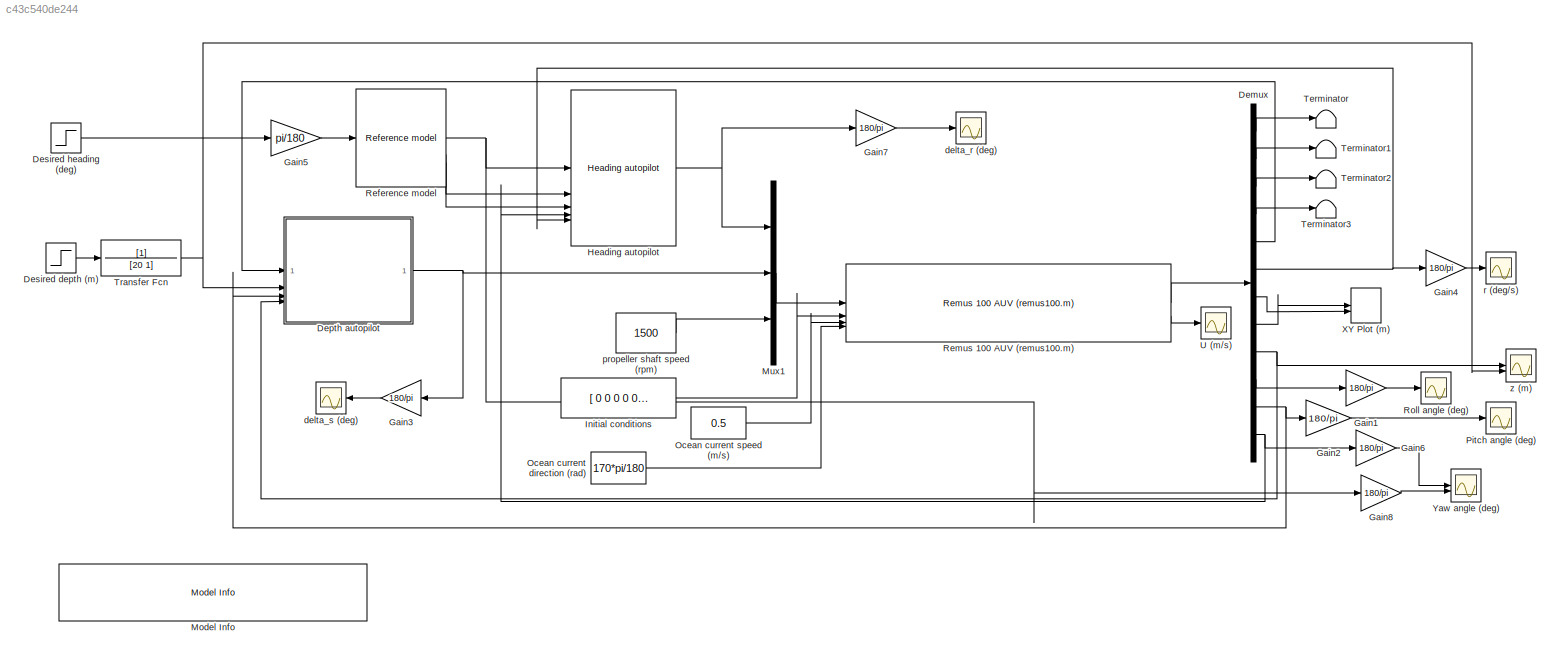
MODEL slx_c43c540de244
KIND model
CONFIG AbsTol = auto
CONFIG EnableMultiTasking = on
CONFIG FixedStep = 0.05
CONFIG MaxStep = auto
CONFIG MinStep = auto
CONFIG RelTol = 1e-3
CONFIG SampleTimeConstraint = Unconstrained
CONFIG SolverName = ode4
CONFIG StartTime = 0.0
CONFIG StopTime = 400
BLOCK [Demux] Demux
  Outputs = 12
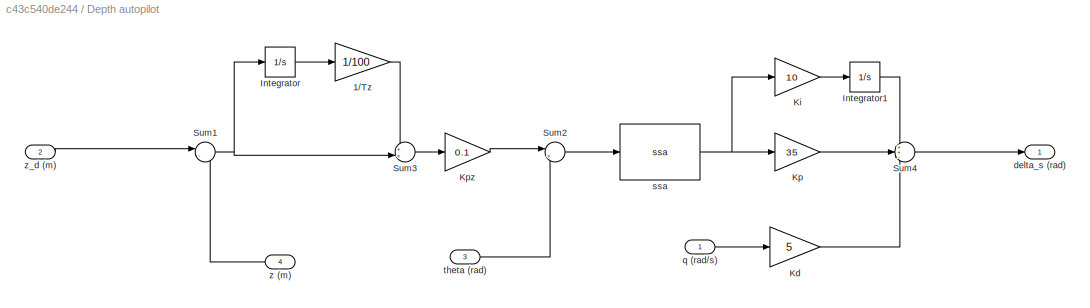
BLOCK [SubSystem] Depth autopilot
BLOCK [Gain] Depth autopilot/1//Tz
  Gain = 1/100
  NameLocation = top
  OutDataTypeStr = Inherit: Same as input
  ParamDataTypeStr = Inherit: Same as input
  SaturateOnIntegerOverflow = on
BLOCK [Integrator] Depth autopilot/Integrator
BLOCK [Integrator] Depth autopilot/Integrator1
BLOCK [Gain] Depth autopilot/Kd
  Gain = 5
  OutDataTypeStr = Inherit: Same as input
  ParamDataTypeStr = Inherit: Same as input
  SaturateOnIntegerOverflow = on
BLOCK [Gain] Depth autopilot/Ki
  Gain = 10
  NameLocation = top
  OutDataTypeStr = Inherit: Same as input
  ParamDataTypeStr = Inherit: Same as input
  SaturateOnIntegerOverflow = on
BLOCK [Gain] Depth autopilot/Kp
  Gain = 35
  NameLocation = top
  OutDataTypeStr = Inherit: Same as input
  ParamDataTypeStr = Inherit: Same as input
  SaturateOnIntegerOverflow = on
BLOCK [Gain] Depth autopilot/Kpz
  Gain = 0.1
  NameLocation = top
  OutDataTypeStr = Inherit: Same as input
  ParamDataTypeStr = Inherit: Same as input
  SaturateOnIntegerOverflow = on
BLOCK [Sum] Depth autopilot/Sum1
  InputSameDT = on
  Inputs = |-+
  OutDataTypeStr = Inherit: Same as first input
  SaturateOnIntegerOverflow = on
BLOCK [Sum] Depth autopilot/Sum2
  InputSameDT = on
  Inputs = |+-
  OutDataTypeStr = Inherit: Same as first input
  SaturateOnIntegerOverflow = on
BLOCK [Sum] Depth autopilot/Sum3
  InputSameDT = on
  Inputs = ++|
  OutDataTypeStr = Inherit: Same as first input
  SaturateOnIntegerOverflow = on
BLOCK [Sum] Depth autopilot/Sum4
  InputSameDT = on
  Inputs = ++-
  OutDataTypeStr = Inherit: Same as first input
  SaturateOnIntegerOverflow = on
BLOCK [Outport] Depth autopilot/delta_s (rad)
BLOCK [Inport] Depth autopilot/q (rad//s)
BLOCK [Reference] Depth autopilot/ssa  REF=mssSimulink/Utilities/Math Operations/ssa
  SourceBlock = mssSimulink/Utilities/Math Operations/ssa
  SourceType = SubSystem
BLOCK [Inport] Depth autopilot/theta (rad)
  Port = 3
BLOCK [Inport] Depth autopilot/z (m)
  NameLocation = top
  Port = 4
BLOCK [Inport] Depth autopilot/z_d (m)
  Port = 2
BLOCK [Step] Desired depth (m)
  After = 30
  SampleTime = 0
  Time = 200
BLOCK [Step] Desired heading (deg)
  After = 0
  SampleTime = 0
  Time = 100
BLOCK [Gain] Gain1
  Gain = 180/pi
BLOCK [Gain] Gain2
  Gain = 180/pi
BLOCK [Gain] Gain3
  Gain = 180/pi
  NameLocation = top
BLOCK [Gain] Gain4
  Gain = 180/pi
BLOCK [Gain] Gain5
  Gain = pi/180
BLOCK [Gain] Gain6
  Gain = 180/pi
BLOCK [Gain] Gain7
  Gain = 180/pi
BLOCK [Gain] Gain8
  Gain = 180/pi
BLOCK [Reference] Heading autopilot   REF=mssSimulink/Control/Autopilots/Heading autopilot
  SourceBlock = mssSimulink/Control/Autopilots/Heading autopilot
  SourceType = Course Autopilot
BLOCK [Constant] Initial conditions
  Value = [ 0 0 0 0 0 0 0 0  0 0 0 0]
BLOCK [Reference] Model Info  REF=simulink/Model-Wide
Utilities/Model Info
  SourceBlock = simulink/Model-Wide\nUtilities/Model Info
  SourceType = CMBlock
BLOCK [Mux] Mux1
  DisplayOption = bar
  Inputs = 3
BLOCK [Constant] Ocean current direction (rad)
  Value = 170*pi/180
BLOCK [Constant] Ocean current speed (m//s)
  Value = 0.5
BLOCK [Scope] Pitch angle (deg)
  Floating = off
  NumInputPorts = 1
  ScopeSpecificationString = Simulink.scopes.TimeScopeBlockCfg('CurrentConfiguration', extmgr.ConfigurationSet(extmgr.Configuration('Core','General UI',true),extmgr.Configuration('Core','Source UI',true),extmgr.Configuration('Sources','WiredSimulink',true,'DataLoggingVariableName','ScopeData1'),extmgr.Configuration('Visuals','Time Domain',true,'SerializedDisplays',{struct('MinYLimReal','-29.1596','MaxYLimReal','3.59689','YLab...<+1419ch>
BLOCK [Reference] Reference model  REF=mssSimulink/Guidance/Reference model
  SourceBlock = mssSimulink/Guidance/Reference model
  SourceType = 3rd-order reference model
BLOCK [Reference] Remus 100 AUV (remus100.m)   REF=mssSimulink/Marine craft models/Remus 100 AUV (remus100.m)
  SourceBlock = mssSimulink/Marine craft models/Remus 100 AUV (remus100.m)
BLOCK [Scope] Roll angle (deg)
  Floating = off
  NumInputPorts = 1
  ScopeSpecificationString = Simulink.scopes.TimeScopeBlockCfg('CurrentConfiguration', extmgr.ConfigurationSet(extmgr.Configuration('Core','General UI',true),extmgr.Configuration('Core','Source UI',true),extmgr.Configuration('Sources','WiredSimulink',true,'DataLoggingVariableName','ScopeData2'),extmgr.Configuration('Visuals','Time Domain',true,'SerializedDisplays',{struct('MinYLimReal','-3.33758','MaxYLimReal','30.03826','YLa...<+1467ch>
BLOCK [Terminator] Terminator
BLOCK [Terminator] Terminator1
BLOCK [Terminator] Terminator2
BLOCK [Terminator] Terminator3
BLOCK [TransferFcn] Transfer Fcn
  Denominator = [20 1]
BLOCK [Scope] U (m//s)
  Floating = off
  NumInputPorts = 1
  ScopeSpecificationString = Simulink.scopes.TimeScopeBlockCfg('CurrentConfiguration', extmgr.ConfigurationSet(extmgr.Configuration('Core','General UI',true),extmgr.Configuration('Core','Source UI',true),extmgr.Configuration('Sources','WiredSimulink',true,'DataLoggingVariableName','ScopeData3'),extmgr.Configuration('Visuals','Time Domain',true,'SerializedDisplays',{struct('MinYLimReal','-0.2937','MaxYLimReal','2.64326','YLabe...<+1459ch>
BLOCK [Record] XY Plot (m)
  CompatibilityTag = XY
  FileSettingsInternal = {"entries":[{"content":{"excelSettings":{"content":{},"type":"Streamout.ExcelSettings"}},"type":"Streamout.FileSettingStorage","uuid":""}],"packageUris":["http:\/\/schema.mathworks.com\/mf0\/streamout_blocks\/R2020a"],"version":"1.0"}
  Layout = [1 1]
  SignalsInternal = {"entries":[{"content":{"signals":[{"content":{"blockPath":[],"dimensions":[1],"domain":"","lineColor":"#a2142f","plots":[1],"port":1,"sid":[""],"signalID":53,"signalName":"Demux:8"},"type":"RecordBlkView.Signal","uuid":""},{"content":{"blockPath":[],"dimensions":[1],"domain":"","lineColor":"#139fff","plots":[1],"port":2,"sid":[""],"signalID":57,"signalName":"Demux:7"},"type":"RecordBlkView.Signal...<+158ch>
  VisualizationBindings = {"xyplotplugin":{"info":[{"series":[{"bindingParametersList":[{"parameter":"X-Axis","signalID":53,"signalName":"Demux:8"},{"parameter":"Y-Axis","signalID":57,"signalName":"Demux:7"}],"seriesID":41182}],"subplotID":1}]}}
  st = -1
BLOCK [Scope] Yaw angle (deg)
  Floating = off
  NumInputPorts = 2
  ScopeSpecificationString = Simulink.scopes.TimeScopeBlockCfg('CurrentConfiguration', extmgr.ConfigurationSet(extmgr.Configuration('Core','General UI',true),extmgr.Configuration('Core','Source UI',true),extmgr.Configuration('Sources','WiredSimulink',true,'DataLoggingVariableName','ScopeData4'),extmgr.Configuration('Visuals','Time Domain',true,'SerializedDisplays',{struct('MinYLimReal','-68.84501','MaxYLimReal','8.33734','YLa...<+1499ch>
BLOCK [Scope] delta_r (deg)
  Floating = off
  NumInputPorts = 1
  ScopeSpecificationString = Simulink.scopes.TimeScopeBlockCfg('CurrentConfiguration', extmgr.ConfigurationSet(extmgr.Configuration('Core','General UI',true),extmgr.Configuration('Core','Source UI',true),extmgr.Configuration('Sources','WiredSimulink',true,'DataLoggingVariableName','ScopeData7'),extmgr.Configuration('Visuals','Time Domain',true,'SerializedDisplays',{struct('MinYLimReal','-6.79279','MaxYLimReal','2.96102','YLab...<+1438ch>
BLOCK [Scope] delta_s (deg)
  Floating = off
  NameLocation = top
  NumInputPorts = 1
  ScopeSpecificationString = Simulink.scopes.TimeScopeBlockCfg('CurrentConfiguration', extmgr.ConfigurationSet(extmgr.Configuration('Core','General UI',true),extmgr.Configuration('Core','Source UI',true),extmgr.Configuration('Sources','WiredSimulink',true,'DataLoggingVariableName','ScopeData6'),extmgr.Configuration('Visuals','Time Domain',true,'SerializedDisplays',{struct('MinYLimReal','-24.18901','MaxYLimReal','48.2881','YLa...<+1421ch>
BLOCK [Constant] propeller shaft speed (rpm)
  Value = 1500
BLOCK [Scope] r (deg//s)
  Floating = off
  NumInputPorts = 1
  ScopeSpecificationString = Simulink.scopes.TimeScopeBlockCfg('CurrentConfiguration', extmgr.ConfigurationSet(extmgr.Configuration('Core','General UI',true),extmgr.Configuration('Core','Source UI',true),extmgr.Configuration('Sources','WiredSimulink',true,'DataLoggingVariableName','ScopeData5'),extmgr.Configuration('Visuals','Time Domain',true,'SerializedDisplays',{struct('MinYLimReal','-0.20179','MaxYLimReal','0.28422','YLab...<+1470ch>
BLOCK [Scope] z (m)
  Floating = off
  NumInputPorts = 2
  ScopeSpecificationString = Simulink.scopes.TimeScopeBlockCfg('CurrentConfiguration', extmgr.ConfigurationSet(extmgr.Configuration('Core','General UI',true),extmgr.Configuration('Core','Source UI',true),extmgr.Configuration('Sources','WiredSimulink',true,'DataLoggingVariableName','ScopeData1'),extmgr.Configuration('Visuals','Time Domain',true,'SerializedDisplays',{struct('MinYLimReal','-4.08549','MaxYLimReal','34.20941','YLa...<+1469ch>
LINE Demux:1 -> Terminator:1
LINE Demux:10 -> Gain1:1
NET Demux:11 -> Depth autopilot:3, Gain2:1
NET Demux:12 -> Gain6:1, Heading autopilot :4
LINE Demux:2 -> Terminator1:1
LINE Demux:3 -> Terminator2:1
LINE Demux:4 -> Terminator3:1
LINE Demux:5 -> Depth autopilot:1
NET Demux:6 -> Gain4:1, Heading autopilot :5
LINE Demux:7 -> XY Plot (m):2
LINE Demux:8 -> XY Plot (m):1
NET Demux:9 -> Depth autopilot:4, z (m):1
LINE Depth autopilot/1//Tz:1 -> Depth autopilot/Sum3:1
LINE Depth autopilot/Integrator1:1 -> Depth autopilot/Sum4:1
LINE Depth autopilot/Integrator:1 -> Depth autopilot/1//Tz:1
LINE Depth autopilot/Kd:1 -> Depth autopilot/Sum4:3
LINE Depth autopilot/Ki:1 -> Depth autopilot/Integrator1:1
LINE Depth autopilot/Kp:1 -> Depth autopilot/Sum4:2
LINE Depth autopilot/Kpz:1 -> Depth autopilot/Sum2:1
NET Depth autopilot/Sum1:1 -> Depth autopilot/Integrator:1, Depth autopilot/Sum3:2
LINE Depth autopilot/Sum2:1 -> Depth autopilot/ssa:1
LINE Depth autopilot/Sum3:1 -> Depth autopilot/Kpz:1
LINE Depth autopilot/Sum4:1 -> Depth autopilot/delta_s (rad):1
LINE Depth autopilot/q (rad//s):1 -> Depth autopilot/Kd:1
NET Depth autopilot/ssa:1 -> Depth autopilot/Ki:1, Depth autopilot/Kp:1
LINE Depth autopilot/theta (rad):1 -> Depth autopilot/Sum2:2
LINE Depth autopilot/z (m):1 -> Depth autopilot/Sum1:2
LINE Depth autopilot/z_d (m):1 -> Depth autopilot/Sum1:1
NET Depth autopilot:1 -> Gain3:1, Mux1:2
LINE Desired depth (m):1 -> Transfer Fcn:1
LINE Desired heading (deg):1 -> Gain5:1
LINE Gain1:1 -> Roll angle (deg):1
LINE Gain2:1 -> Pitch angle (deg):1
LINE Gain3:1 -> delta_s (deg):1
LINE Gain4:1 -> r (deg//s):1
LINE Gain5:1 -> Reference model:1
LINE Gain6:1 -> Yaw angle (deg):1
LINE Gain7:1 -> delta_r (deg):1
LINE Gain8:1 -> Yaw angle (deg):2
NET Heading autopilot :1 -> Gain7:1, Mux1:1
LINE Initial conditions:1 -> Remus 100 AUV (remus100.m) :2
LINE Mux1:1 -> Remus 100 AUV (remus100.m) :1
LINE Ocean current direction (rad):1 -> Remus 100 AUV (remus100.m) :4
LINE Ocean current speed (m//s):1 -> Remus 100 AUV (remus100.m) :3
NET Reference model:1 -> Gain8:1, Heading autopilot :1
LINE Reference model:2 -> Heading autopilot :2
LINE Reference model:3 -> Heading autopilot :3
LINE Remus 100 AUV (remus100.m) :1 -> Demux:1
LINE Remus 100 AUV (remus100.m) :2 -> U (m//s):1
NET Transfer Fcn:1 -> Depth autopilot:2, z (m):2
LINE propeller shaft speed (rpm):1 -> Mux1:3
note: NET lines group one-source signal fan-out (src -> all destinations, sorted); 1:1 wires keep LINE
